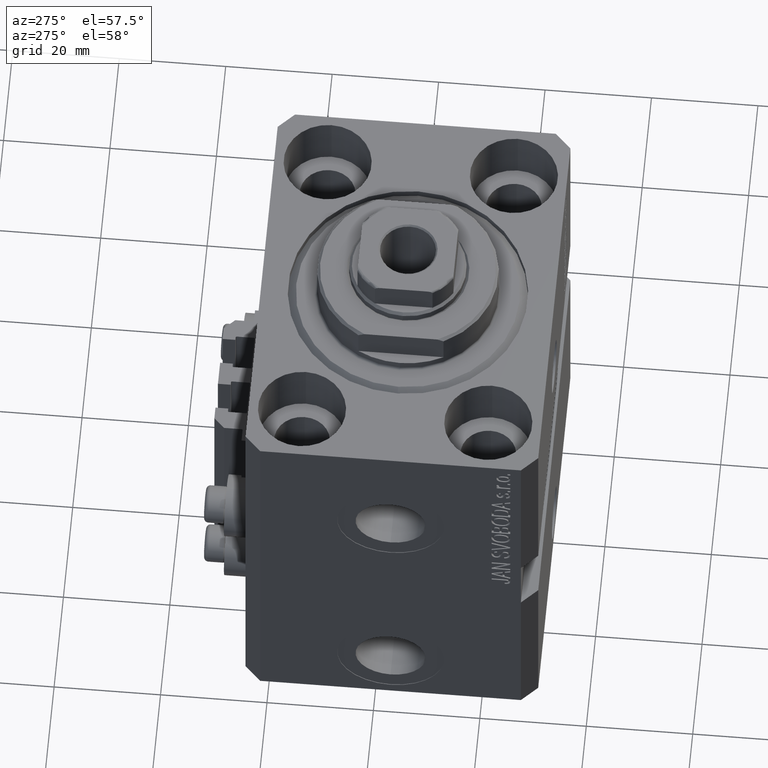
[diagram: clean part render]
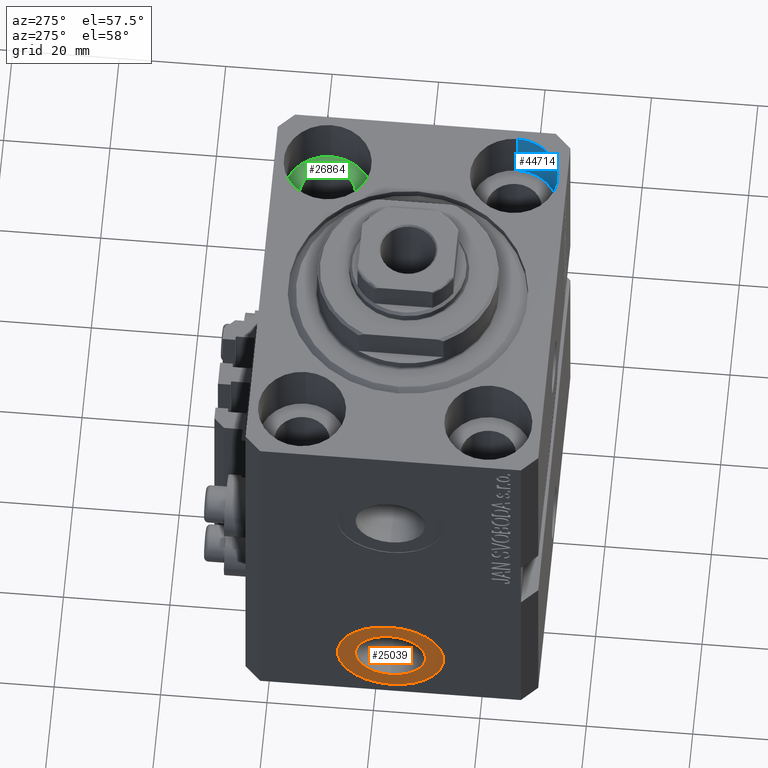
[diagram: same view with three faces highlighted in distinct colors, each labeled with its STEP entity id]
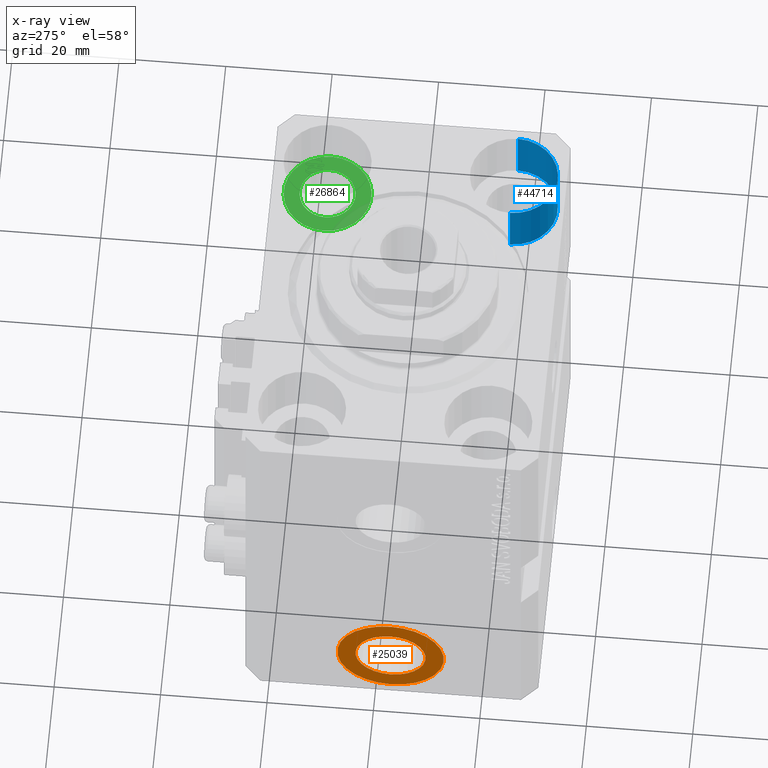
[diagram: x-ray of the same camera — body ghosted, the three highlighted faces saturated]
A machine part, auxiliary view with three faces highlighted in distinct colors.
The next image is the same camera in x-ray (body ghosted, the three faces saturated) — at least one of them is partly hidden behind the body in this view.
Their STEP definitions:

[orange] entity #25039 — the highlighted planar face has unit normal (-1, 0, 0).
#200 = DIRECTION ( 'NONE',  ( -1.000000000000000000, 0.000000000000000000, 0.000000000000000000 ) ) ;
#2719 = CARTESIAN_POINT ( 'NONE',  ( -37.39999999999999147, -8.327598234202001119E-15, -58.00000000000000711 ) ) ;
#3347 = DIRECTION ( 'NONE',  ( -1.000000000000000000, 0.000000000000000000, 0.000000000000000000 ) ) ;
#3583 = FACE_BOUND ( 'NONE', #10152, .T. ) ;
#5079 = DIRECTION ( 'NONE',  ( -1.000000000000000000, 0.000000000000000000, 0.000000000000000000 ) ) ;
#7243 = ORIENTED_EDGE ( 'NONE', *, *, #11682, .F. ) ;
#7779 = CARTESIAN_POINT ( 'NONE',  ( -37.39999999999999147, -8.327598234202001119E-15, -68.00000000000000000 ) ) ;
#7984 = DIRECTION ( 'NONE',  ( 0.000000000000000000, 0.000000000000000000, 1.000000000000000000 ) ) ;
#8307 = VERTEX_POINT ( 'NONE', #29447 ) ;
#8442 = CARTESIAN_POINT ( 'NONE',  ( -37.39999999999999147, -8.327598234202001119E-15, -68.00000000000000000 ) ) ;
#8689 = EDGE_CURVE ( 'NONE', #17421, #21773, #39684, .T. ) ;
#9399 = VERTEX_POINT ( 'NONE', #30676 ) ;
#10152 = EDGE_LOOP ( 'NONE', ( #7243, #29028 ) ) ;
#11682 = EDGE_CURVE ( 'NONE', #8307, #9399, #11708, .T. ) ;
#11708 = CIRCLE ( 'NONE', #38187, 6.580000000000002736 ) ;
#14169 = DIRECTION ( 'NONE',  ( 0.000000000000000000, 0.000000000000000000, 1.000000000000000000 ) ) ;
#14857 = AXIS2_PLACEMENT_3D ( 'NONE', #37529, #5079, #37758 ) ;
#16936 = EDGE_LOOP ( 'NONE', ( #35889, #16995 ) ) ;
#16995 = ORIENTED_EDGE ( 'NONE', *, *, #8689, .T. ) ;
#17421 = VERTEX_POINT ( 'NONE', #33112 ) ;
#18022 = FACE_OUTER_BOUND ( 'NONE', #16936, .T. ) ;
#21286 = CARTESIAN_POINT ( 'NONE',  ( -37.39999999999999147, -8.327598234202001119E-15, -68.00000000000000000 ) ) ;
#21654 = CIRCLE ( 'NONE', #14857, 9.999999999999994671 ) ;
#21773 = VERTEX_POINT ( 'NONE', #2719 ) ;
#21948 = DIRECTION ( 'NONE',  ( -1.000000000000000000, 0.000000000000000000, 0.000000000000000000 ) ) ;
#24532 = AXIS2_PLACEMENT_3D ( 'NONE', #7779, #200, #14169 ) ;
#25039 = ADVANCED_FACE ( 'NONE', ( #3583, #18022 ), #39572, .T. ) ;
#25604 = DIRECTION ( 'NONE',  ( 0.000000000000000000, 0.000000000000000000, 1.000000000000000000 ) ) ;
#27926 = DIRECTION ( 'NONE',  ( -1.000000000000000000, 0.000000000000000000, 0.000000000000000000 ) ) ;
#29028 = ORIENTED_EDGE ( 'NONE', *, *, #32642, .F. ) ;
#29447 = CARTESIAN_POINT ( 'NONE',  ( -37.39999999999999147, -8.327598234202001119E-15, -61.42000000000000171 ) ) ;
#30676 = CARTESIAN_POINT ( 'NONE',  ( -37.39999999999999147, -7.521780640363043654E-15, -74.58000000000001251 ) ) ;
#32642 = EDGE_CURVE ( 'NONE', #9399, #8307, #32848, .T. ) ;
#32848 = CIRCLE ( 'NONE', #24532, 6.580000000000002736 ) ;
#33112 = CARTESIAN_POINT ( 'NONE',  ( -37.39999999999999147, -7.102951435054649637E-15, -78.00000000000000000 ) ) ;
#33365 = AXIS2_PLACEMENT_3D ( 'NONE', #43354, #3347, #25604 ) ;
#35732 = DIRECTION ( 'NONE',  ( 0.000000000000000000, 0.000000000000000000, 1.000000000000000000 ) ) ;
#35889 = ORIENTED_EDGE ( 'NONE', *, *, #40437, .T. ) ;
#37529 = CARTESIAN_POINT ( 'NONE',  ( -37.39999999999999147, -8.327598234202001119E-15, -68.00000000000000000 ) ) ;
#37758 = DIRECTION ( 'NONE',  ( 0.000000000000000000, 0.000000000000000000, 1.000000000000000000 ) ) ;
#38187 = AXIS2_PLACEMENT_3D ( 'NONE', #8442, #21948, #7984 ) ;
#38190 = AXIS2_PLACEMENT_3D ( 'NONE', #21286, #27926, #35732 ) ;
#39572 = PLANE ( 'NONE',  #33365 ) ;
#39684 = CIRCLE ( 'NONE', #38190, 9.999999999999994671 ) ;
#40437 = EDGE_CURVE ( 'NONE', #21773, #17421, #21654, .T. ) ;
#43354 = CARTESIAN_POINT ( 'NONE',  ( -37.39999999999999147, -8.327598234202001119E-15, -68.00000000000000000 ) ) ;

[blue] entity #44714 — the highlighted cylindrical surface (partial cylindrical patch) has radius 8.25 mm, axis along (0, 0, 1).
#591 = CARTESIAN_POINT ( 'NONE',  ( 27.50000000000000355, -17.50000000000000000, 0.000000000000000000 ) ) ;
#1832 = ORIENTED_EDGE ( 'NONE', *, *, #38738, .F. ) ;
#2418 = ORIENTED_EDGE ( 'NONE', *, *, #36484, .T. ) ;
#3656 = DIRECTION ( 'NONE',  ( 0.000000000000000000, 0.000000000000000000, 1.000000000000000000 ) ) ;
#5233 = ORIENTED_EDGE ( 'NONE', *, *, #8177, .F. ) ;
#5808 = DIRECTION ( 'NONE',  ( 1.000000000000000000, 0.000000000000000000, 0.000000000000000000 ) ) ;
#7445 = CARTESIAN_POINT ( 'NONE',  ( 35.75000000000000711, -17.50000000000000000, 0.000000000000000000 ) ) ;
#8177 = EDGE_CURVE ( 'NONE', #9922, #18088, #21545, .T. ) ;
#9922 = VERTEX_POINT ( 'NONE', #34414 ) ;
#11557 = CIRCLE ( 'NONE', #16871, 8.250000000000000000 ) ;
#12907 = CYLINDRICAL_SURFACE ( 'NONE', #23318, 8.250000000000000000 ) ;
#16871 = AXIS2_PLACEMENT_3D ( 'NONE', #591, #3656, #43901 ) ;
#18088 = VERTEX_POINT ( 'NONE', #20889 ) ;
#18491 = VERTEX_POINT ( 'NONE', #40688 ) ;
#20889 = CARTESIAN_POINT ( 'NONE',  ( 35.75000000000000711, -17.50000000000000000, -11.00000000000000000 ) ) ;
#21394 = DIRECTION ( 'NONE',  ( 1.000000000000000000, 0.000000000000000000, 0.000000000000000000 ) ) ;
#21545 = CIRCLE ( 'NONE', #26819, 8.250000000000000000 ) ;
#22741 = VERTEX_POINT ( 'NONE', #7445 ) ;
#23318 = AXIS2_PLACEMENT_3D ( 'NONE', #27352, #38256, #5808 ) ;
#25175 = CARTESIAN_POINT ( 'NONE',  ( 27.50000000000000355, -17.50000000000000000, -11.00000000000000000 ) ) ;
#26819 = AXIS2_PLACEMENT_3D ( 'NONE', #25175, #28728, #21394 ) ;
#26863 = VECTOR ( 'NONE', #31969, 1000.000000000000000 ) ;
#27352 = CARTESIAN_POINT ( 'NONE',  ( 27.50000000000000355, -17.50000000000000000, -11.00000000000000000 ) ) ;
#28419 = VECTOR ( 'NONE', #34602, 1000.000000000000000 ) ;
#28728 = DIRECTION ( 'NONE',  ( 0.000000000000000000, 0.000000000000000000, 1.000000000000000000 ) ) ;
#29555 = EDGE_CURVE ( 'NONE', #18491, #22741, #11557, .T. ) ;
#31584 = ORIENTED_EDGE ( 'NONE', *, *, #29555, .T. ) ;
#31969 = DIRECTION ( 'NONE',  ( -0.000000000000000000, -0.000000000000000000, 1.000000000000000000 ) ) ;
#34414 = CARTESIAN_POINT ( 'NONE',  ( 19.25000000000000000, -17.50000000000000000, -11.00000000000000000 ) ) ;
#34470 = FACE_OUTER_BOUND ( 'NONE', #45495, .T. ) ;
#34602 = DIRECTION ( 'NONE',  ( -0.000000000000000000, -0.000000000000000000, 1.000000000000000000 ) ) ;
#36484 = EDGE_CURVE ( 'NONE', #9922, #18491, #45005, .T. ) ;
#38256 = DIRECTION ( 'NONE',  ( -0.000000000000000000, -0.000000000000000000, 1.000000000000000000 ) ) ;
#38395 = CARTESIAN_POINT ( 'NONE',  ( 35.75000000000000711, -17.50000000000000000, -11.00000000000000000 ) ) ;
#38738 = EDGE_CURVE ( 'NONE', #18088, #22741, #42389, .T. ) ;
#40688 = CARTESIAN_POINT ( 'NONE',  ( 19.25000000000000000, -17.50000000000000000, 0.000000000000000000 ) ) ;
#40982 = CARTESIAN_POINT ( 'NONE',  ( 19.25000000000000000, -17.50000000000000000, -11.00000000000000000 ) ) ;
#42389 = LINE ( 'NONE', #38395, #26863 ) ;
#43901 = DIRECTION ( 'NONE',  ( 1.000000000000000000, 0.000000000000000000, 0.000000000000000000 ) ) ;
#44714 = ADVANCED_FACE ( 'NONE', ( #34470 ), #12907, .F. ) ;
#45005 = LINE ( 'NONE', #40982, #28419 ) ;
#45495 = EDGE_LOOP ( 'NONE', ( #5233, #2418, #31584, #1832 ) ) ;

[green] entity #26864 — the highlighted planar face has unit normal (0, 0, 1).
#594 = VERTEX_POINT ( 'NONE', #20509 ) ;
#1669 = DIRECTION ( 'NONE',  ( 0.000000000000000000, 0.000000000000000000, 1.000000000000000000 ) ) ;
#5193 = AXIS2_PLACEMENT_3D ( 'NONE', #44523, #1669, #22535 ) ;
#8701 = AXIS2_PLACEMENT_3D ( 'NONE', #33761, #15751, #44404 ) ;
#8900 = DIRECTION ( 'NONE',  ( 0.000000000000000000, 0.000000000000000000, 1.000000000000000000 ) ) ;
#9388 = EDGE_CURVE ( 'NONE', #594, #42498, #38845, .T. ) ;
#10129 = AXIS2_PLACEMENT_3D ( 'NONE', #19597, #16278, #26701 ) ;
#11987 = CIRCLE ( 'NONE', #5193, 5.249999999999997335 ) ;
#13016 = AXIS2_PLACEMENT_3D ( 'NONE', #33858, #30998, #30299 ) ;
#15189 = CARTESIAN_POINT ( 'NONE',  ( 35.74999999999999289, 17.50000000000001066, -11.00000000000000000 ) ) ;
#15751 = DIRECTION ( 'NONE',  ( 0.000000000000000000, 0.000000000000000000, 1.000000000000000000 ) ) ;
#16278 = DIRECTION ( 'NONE',  ( 0.000000000000000000, 0.000000000000000000, 1.000000000000000000 ) ) ;
#16477 = CARTESIAN_POINT ( 'NONE',  ( 27.49999999999999645, 17.50000000000001066, -11.00000000000000000 ) ) ;
#17188 = ORIENTED_EDGE ( 'NONE', *, *, #9388, .F. ) ;
#18014 = ORIENTED_EDGE ( 'NONE', *, *, #18951, .T. ) ;
#18951 = EDGE_CURVE ( 'NONE', #30015, #26116, #32442, .T. ) ;
#19407 = PLANE ( 'NONE',  #13016 ) ;
#19597 = CARTESIAN_POINT ( 'NONE',  ( 27.49999999999999645, 17.50000000000001066, -11.00000000000000000 ) ) ;
#20106 = FACE_OUTER_BOUND ( 'NONE', #25348, .T. ) ;
#20509 = CARTESIAN_POINT ( 'NONE',  ( 22.25000000000000000, 17.50000000000001066, -11.00000000000000000 ) ) ;
#22535 = DIRECTION ( 'NONE',  ( 1.000000000000000000, 0.000000000000000000, 0.000000000000000000 ) ) ;
#23574 = DIRECTION ( 'NONE',  ( 1.000000000000000000, 0.000000000000000000, 0.000000000000000000 ) ) ;
#25348 = EDGE_LOOP ( 'NONE', ( #18014, #45264 ) ) ;
#26116 = VERTEX_POINT ( 'NONE', #30332 ) ;
#26396 = AXIS2_PLACEMENT_3D ( 'NONE', #16477, #8900, #23574 ) ;
#26701 = DIRECTION ( 'NONE',  ( 1.000000000000000000, 0.000000000000000000, 0.000000000000000000 ) ) ;
#26864 = ADVANCED_FACE ( 'NONE', ( #38109, #20106 ), #19407, .T. ) ;
#30015 = VERTEX_POINT ( 'NONE', #15189 ) ;
#30299 = DIRECTION ( 'NONE',  ( 1.000000000000000000, 0.000000000000000000, -0.000000000000000000 ) ) ;
#30332 = CARTESIAN_POINT ( 'NONE',  ( 19.25000000000000000, 17.50000000000001066, -11.00000000000000000 ) ) ;
#30548 = CIRCLE ( 'NONE', #10129, 8.249999999999992895 ) ;
#30998 = DIRECTION ( 'NONE',  ( 0.000000000000000000, 0.000000000000000000, 1.000000000000000000 ) ) ;
#31262 = ORIENTED_EDGE ( 'NONE', *, *, #46305, .F. ) ;
#32442 = CIRCLE ( 'NONE', #26396, 8.249999999999992895 ) ;
#32699 = EDGE_CURVE ( 'NONE', #26116, #30015, #30548, .T. ) ;
#33761 = CARTESIAN_POINT ( 'NONE',  ( 27.49999999999999645, 17.50000000000001066, -11.00000000000000000 ) ) ;
#33858 = CARTESIAN_POINT ( 'NONE',  ( 27.49999999999999645, 17.50000000000001066, -11.00000000000000000 ) ) ;
#35149 = CARTESIAN_POINT ( 'NONE',  ( 32.74999999999999289, 17.50000000000001066, -11.00000000000000000 ) ) ;
#38109 = FACE_BOUND ( 'NONE', #42755, .T. ) ;
#38845 = CIRCLE ( 'NONE', #8701, 5.249999999999997335 ) ;
#42498 = VERTEX_POINT ( 'NONE', #35149 ) ;
#42755 = EDGE_LOOP ( 'NONE', ( #31262, #17188 ) ) ;
#44404 = DIRECTION ( 'NONE',  ( 1.000000000000000000, 0.000000000000000000, 0.000000000000000000 ) ) ;
#44523 = CARTESIAN_POINT ( 'NONE',  ( 27.49999999999999645, 17.50000000000001066, -11.00000000000000000 ) ) ;
#45264 = ORIENTED_EDGE ( 'NONE', *, *, #32699, .T. ) ;
#46305 = EDGE_CURVE ( 'NONE', #42498, #594, #11987, .T. ) ;